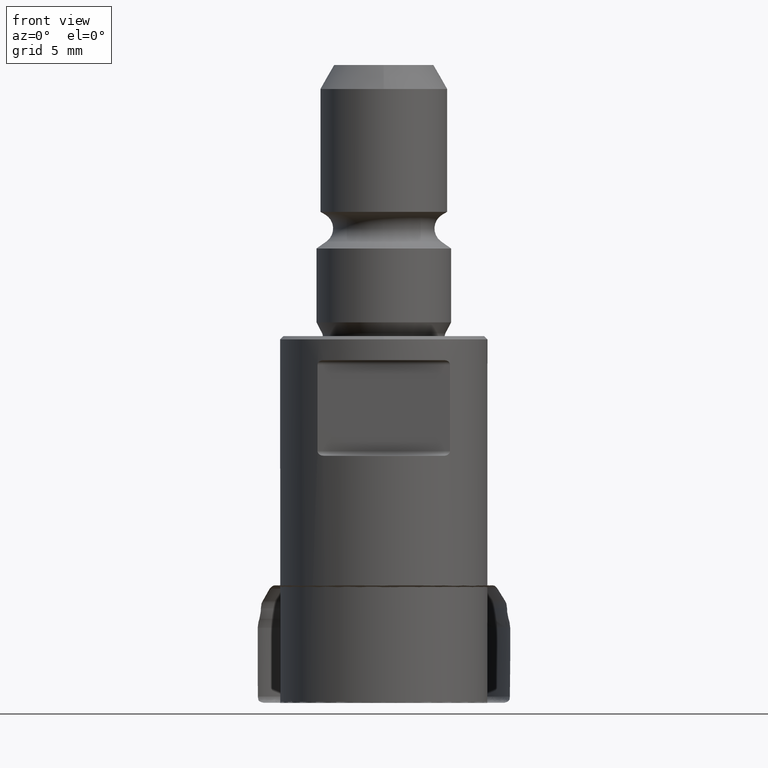
[diagram: clean part render]
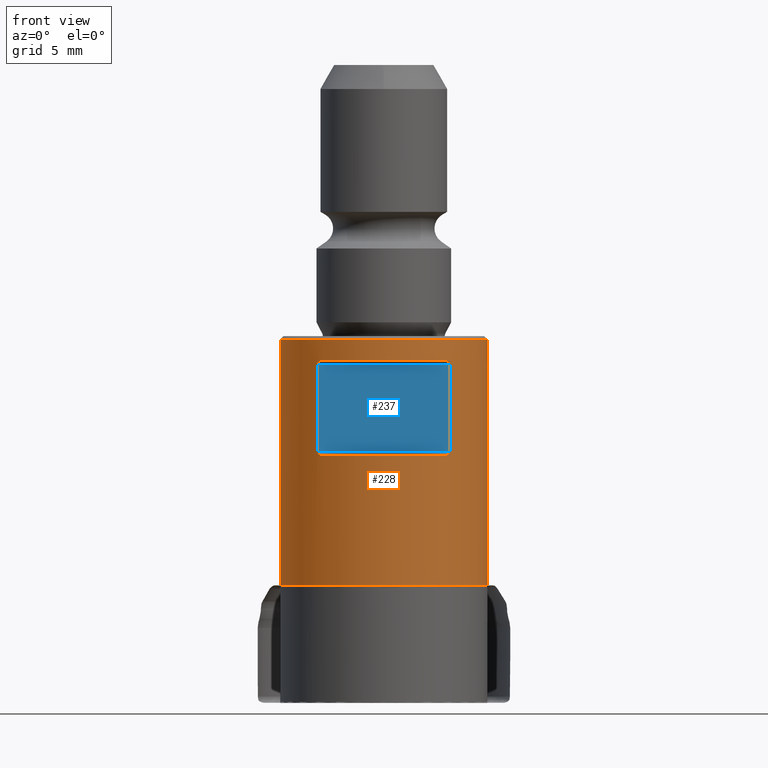
[diagram: same view with the hole feature highlighted: cylindrical wall and planar end face, labeled with their STEP entity ids]
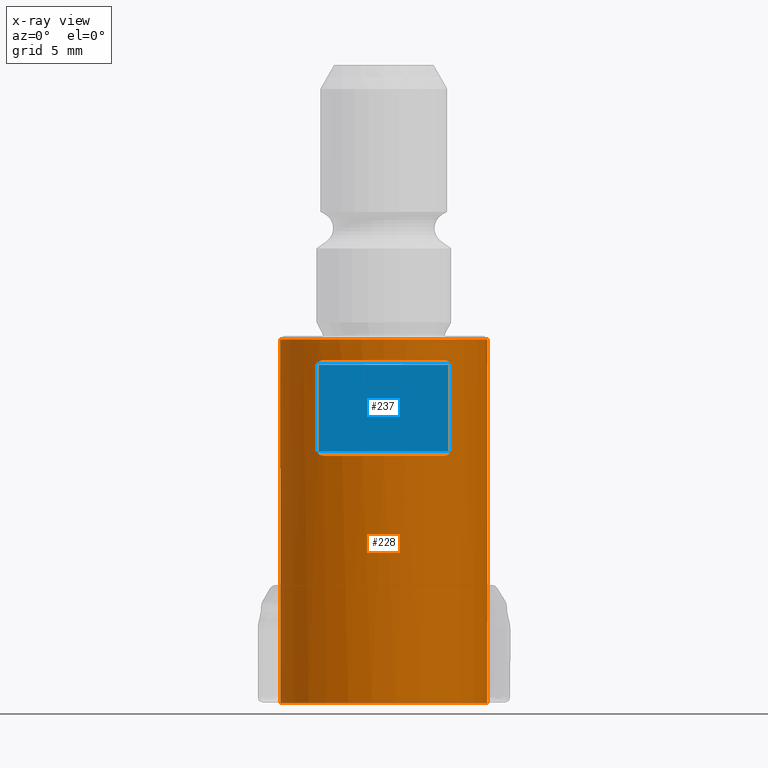
[diagram: x-ray of the same camera — body ghosted, the hole faces saturated]
A machine part, front view. The highlighted faces form one hole feature of diameter 13 mm: the cylindrical wall (entity #228, orange) and its adjacent planar end face (entity #237, blue) — they share a circular edge in the B-rep.
The next image is the same camera in x-ray (body ghosted, the hole faces saturated) — the bore reads through the body.
Wall:
#164=LINE('',#1260,#182);
#165=LINE('',#1305,#183);
#166=LINE('',#1348,#184);
#167=LINE('',#1393,#185);
#182=VECTOR('',#874,1.);
#183=VECTOR('',#877,1.);
#184=VECTOR('',#880,1.);
#185=VECTOR('',#883,1.);
#212=CYLINDRICAL_SURFACE('',#788,6.50000000000001);
#228=ADVANCED_FACE('',(#295,#296,#297,#298),#212,.T.);
#295=FACE_BOUND('',#371,.T.);
#296=FACE_BOUND('',#372,.T.);
#297=FACE_BOUND('',#373,.T.);
#298=FACE_BOUND('',#374,.T.);
#371=EDGE_LOOP('',(#457,#458,#459,#460,#461,#462,#463,#464));
#372=EDGE_LOOP('',(#465,#466,#467,#468,#469,#470,#471,#472));
#373=EDGE_LOOP('',(#473));
#374=EDGE_LOOP('',(#474));
#457=ORIENTED_EDGE('',*,*,#625,.T.);
#458=ORIENTED_EDGE('',*,*,#626,.T.);
#459=ORIENTED_EDGE('',*,*,#627,.T.);
#460=ORIENTED_EDGE('',*,*,#628,.T.);
#461=ORIENTED_EDGE('',*,*,#629,.T.);
#462=ORIENTED_EDGE('',*,*,#630,.T.);
#463=ORIENTED_EDGE('',*,*,#631,.T.);
#464=ORIENTED_EDGE('',*,*,#632,.T.);
#465=ORIENTED_EDGE('',*,*,#633,.T.);
#466=ORIENTED_EDGE('',*,*,#634,.T.);
#467=ORIENTED_EDGE('',*,*,#635,.T.);
#468=ORIENTED_EDGE('',*,*,#636,.T.);
#469=ORIENTED_EDGE('',*,*,#637,.T.);
#470=ORIENTED_EDGE('',*,*,#638,.T.);
#471=ORIENTED_EDGE('',*,*,#639,.T.);
#472=ORIENTED_EDGE('',*,*,#640,.T.);
#473=ORIENTED_EDGE('',*,*,#641,.T.);
#474=ORIENTED_EDGE('',*,*,#642,.T.);
#571=VERTEX_POINT('',#1261);
#572=VERTEX_POINT('',#1262);
#573=VERTEX_POINT('',#1282);
#574=VERTEX_POINT('',#1284);
#575=VERTEX_POINT('',#1304);
#576=VERTEX_POINT('',#1306);
#577=VERTEX_POINT('',#1326);
#578=VERTEX_POINT('',#1328);
#579=VERTEX_POINT('',#1349);
#580=VERTEX_POINT('',#1350);
#581=VERTEX_POINT('',#1370);
#582=VERTEX_POINT('',#1372);
#583=VERTEX_POINT('',#1392);
#584=VERTEX_POINT('',#1394);
#585=VERTEX_POINT('',#1411);
#586=VERTEX_POINT('',#1413);
#587=VERTEX_POINT('',#1431);
#588=VERTEX_POINT('',#1433);
#625=EDGE_CURVE('',#571,#572,#164,.T.);
#626=EDGE_CURVE('',#572,#573,#736,.T.);
#627=EDGE_CURVE('',#573,#574,#686,.T.);
#628=EDGE_CURVE('',#574,#575,#737,.T.);
#629=EDGE_CURVE('',#575,#576,#165,.T.);
#630=EDGE_CURVE('',#576,#577,#738,.T.);
#631=EDGE_CURVE('',#577,#578,#687,.T.);
#632=EDGE_CURVE('',#578,#571,#739,.T.);
#633=EDGE_CURVE('',#579,#580,#166,.T.);
#634=EDGE_CURVE('',#580,#581,#740,.T.);
#635=EDGE_CURVE('',#581,#582,#688,.T.);
#636=EDGE_CURVE('',#582,#583,#741,.T.);
#637=EDGE_CURVE('',#583,#584,#167,.T.);
#638=EDGE_CURVE('',#584,#585,#742,.T.);
#639=EDGE_CURVE('',#585,#586,#689,.T.);
#640=EDGE_CURVE('',#586,#579,#743,.T.);
#641=EDGE_CURVE('',#587,#587,#690,.T.);
#642=EDGE_CURVE('',#588,#588,#691,.T.);
#686=CIRCLE('',#782,6.50000000000001);
#687=CIRCLE('',#783,6.50000000000001);
#688=CIRCLE('',#784,6.50000000000001);
#689=CIRCLE('',#785,6.50000000000001);
#690=CIRCLE('',#786,6.50000000000001);
#691=CIRCLE('',#787,6.50000000000001);
#736=B_SPLINE_CURVE_WITH_KNOTS('',3,(#1263,#1264,#1265,#1266,#1267,#1268,
#1269,#1270,#1271,#1272,#1273,#1274,#1275,#1276,#1277,#1278,#1279,#1280,
#1281),.UNSPECIFIED.,.F.,.F.,(4,3,3,3,3,3,4),(0.,0.0253011738920627,0.128736061989017,
0.259715914585544,0.445657006271651,0.737129554108066,1.),.UNSPECIFIED.);
#737=B_SPLINE_CURVE_WITH_KNOTS('',3,(#1285,#1286,#1287,#1288,#1289,#1290,
#1291,#1292,#1293,#1294,#1295,#1296,#1297,#1298,#1299,#1300,#1301,#1302,
#1303),.UNSPECIFIED.,.F.,.F.,(4,3,3,3,3,3,4),(0.,0.0619034414888289,0.417631122666233,
0.630619276895235,0.787796200165634,0.905948468410497,1.),.UNSPECIFIED.);
#738=B_SPLINE_CURVE_WITH_KNOTS('',3,(#1307,#1308,#1309,#1310,#1311,#1312,
#1313,#1314,#1315,#1316,#1317,#1318,#1319,#1320,#1321,#1322,#1323,#1324,
#1325),.UNSPECIFIED.,.F.,.F.,(4,3,3,3,3,3,4),(0.,0.0253011738920736,0.128736061989028,
0.259715914585564,0.445657006271673,0.73712955410811,1.),.UNSPECIFIED.);
#739=B_SPLINE_CURVE_WITH_KNOTS('',3,(#1329,#1330,#1331,#1332,#1333,#1334,
#1335,#1336,#1337,#1338,#1339,#1340,#1341,#1342,#1343,#1344,#1345,#1346,
#1347),.UNSPECIFIED.,.F.,.F.,(4,3,3,3,3,3,4),(0.,0.0619034414888381,0.417631122666238,
0.630619276895243,0.787796200165641,0.905948468410508,1.),.UNSPECIFIED.);
#740=B_SPLINE_CURVE_WITH_KNOTS('',3,(#1351,#1352,#1353,#1354,#1355,#1356,
#1357,#1358,#1359,#1360,#1361,#1362,#1363,#1364,#1365,#1366,#1367,#1368,
#1369),.UNSPECIFIED.,.F.,.F.,(4,3,3,3,3,3,4),(0.,0.0253011738920624,0.128736061989016,
0.259715914585543,0.44565700627165,0.737129554108065,1.),.UNSPECIFIED.);
#741=B_SPLINE_CURVE_WITH_KNOTS('',3,(#1373,#1374,#1375,#1376,#1377,#1378,
#1379,#1380,#1381,#1382,#1383,#1384,#1385,#1386,#1387,#1388,#1389,#1390,
#1391),.UNSPECIFIED.,.F.,.F.,(4,3,3,3,3,3,4),(0.,0.0619034414888287,0.417631122666232,
0.630619276895234,0.787796200165632,0.905948468410496,1.),.UNSPECIFIED.);
#742=B_SPLINE_CURVE_WITH_KNOTS('',3,(#1395,#1396,#1397,#1398,#1399,#1400,
#1401,#1402,#1403,#1404,#1405,#1406,#1407,#1408,#1409,#1410),
 .UNSPECIFIED.,.F.,.F.,(4,3,3,3,3,4),(0.,0.11871641708076,0.236224692479285,
0.410764939640181,0.681292844719464,1.),.UNSPECIFIED.);
#743=B_SPLINE_CURVE_WITH_KNOTS('',3,(#1414,#1415,#1416,#1417,#1418,#1419,
#1420,#1421,#1422,#1423,#1424,#1425,#1426,#1427,#1428,#1429),
 .UNSPECIFIED.,.F.,.F.,(4,3,3,3,3,4),(0.,0.441910657667721,0.632581644963178,
0.794039734534741,0.910417861167614,1.),.UNSPECIFIED.);
#782=AXIS2_PLACEMENT_3D('',#1283,#875,#876);
#783=AXIS2_PLACEMENT_3D('',#1327,#878,#879);
#784=AXIS2_PLACEMENT_3D('',#1371,#881,#882);
#785=AXIS2_PLACEMENT_3D('',#1412,#884,#885);
#786=AXIS2_PLACEMENT_3D('',#1430,#886,#887);
#787=AXIS2_PLACEMENT_3D('',#1432,#888,#889);
#788=AXIS2_PLACEMENT_3D('',#1434,#890,#891);
#874=DIRECTION('',(1.17145536458252E-15,1.17145536458252E-15,1.));
#875=DIRECTION('',(1.17145536458252E-15,1.17145536458252E-15,1.));
#876=DIRECTION('',(0.,1.,-1.06752213906265E-15));
#877=DIRECTION('',(-1.17145536458252E-15,-1.17145536458252E-15,-1.));
#878=DIRECTION('',(-1.17145536458252E-15,-1.17145536458252E-15,-1.));
#879=DIRECTION('',(0.,-1.,1.06752213906265E-15));
#880=DIRECTION('',(1.17145536458252E-15,1.17145536458252E-15,1.));
#881=DIRECTION('',(1.17145536458252E-15,1.17145536458252E-15,1.));
#882=DIRECTION('',(0.,1.,-1.06752213906265E-15));
#883=DIRECTION('',(-1.17145536458252E-15,-1.17145536458252E-15,-1.));
#884=DIRECTION('',(-1.17145536458252E-15,-1.17145536458252E-15,-1.));
#885=DIRECTION('',(0.,-1.,1.06752213906265E-15));
#886=DIRECTION('',(-1.17145536458252E-15,-1.17145536458252E-15,-1.));
#887=DIRECTION('',(0.,-1.,1.06752213906265E-15));
#888=DIRECTION('',(1.17145536458252E-15,1.17145536458252E-15,1.));
#889=DIRECTION('',(0.,1.,-1.17151172243325E-15));
#890=DIRECTION('',(1.17145536458252E-15,1.17145536458252E-15,1.));
#891=DIRECTION('',(0.,1.,-1.17151172243325E-15));
#1260=CARTESIAN_POINT('',(4.15331193145905,4.99999999999999,-0.0130000000000113));
#1261=CARTESIAN_POINT('',(4.15331193145907,5.00000000000002,15.787));
#1262=CARTESIAN_POINT('',(4.15331193145907,5.00000000000002,21.187));
#1263=CARTESIAN_POINT('',(4.15331193145907,5.00000000000002,21.187));
#1264=CARTESIAN_POINT('',(4.15331193145907,5.00000000000002,21.1923916224035));
#1265=CARTESIAN_POINT('',(4.15313647922876,5.00014575694473,21.1977879897077));
#1266=CARTESIAN_POINT('',(4.15278749220165,5.00043558548794,21.2031604937434));
#1267=CARTESIAN_POINT('',(4.15136987727308,5.00161289363309,21.2249840611914));
#1268=CARTESIAN_POINT('',(4.14697266977673,5.00526657667684,21.246722779189));
#1269=CARTESIAN_POINT('',(4.14025980117646,5.01081318537847,21.2668184580723));
#1270=CARTESIAN_POINT('',(4.13177882755827,5.01782071745904,21.2922071454722));
#1271=CARTESIAN_POINT('',(4.1194345032128,5.027982219286,21.31570140177));
#1272=CARTESIAN_POINT('',(4.1050159725977,5.03972656646353,21.3361902804982));
#1273=CARTESIAN_POINT('',(4.08459814096393,5.05635753321879,21.3652042270232));
#1274=CARTESIAN_POINT('',(4.05951047387773,5.07656744469597,21.3892332253044));
#1275=CARTESIAN_POINT('',(4.0327728260745,5.09771942473059,21.4085458617728));
#1276=CARTESIAN_POINT('',(3.99100428085047,5.13076225038062,21.4387153342582));
#1277=CARTESIAN_POINT('',(3.94390847070128,5.16712512151093,21.4586371061377));
#1278=CARTESIAN_POINT('',(3.89590653321161,5.20306758407765,21.4709086239329));
#1279=CARTESIAN_POINT('',(3.85269533203192,5.2354228818445,21.4819554077078));
#1280=CARTESIAN_POINT('',(3.80790593694802,5.26810103168013,21.487));
#1281=CARTESIAN_POINT('',(3.76297754444539,5.30000000000003,21.487));
#1282=CARTESIAN_POINT('',(3.76297754444539,5.30000000000003,21.487));
#1283=CARTESIAN_POINT('',(2.51710614187847E-14,2.51710614187847E-14,21.487));
#1284=CARTESIAN_POINT('',(-3.76297754444534,5.30000000000003,21.487));
#1285=CARTESIAN_POINT('',(-3.76297754444534,5.30000000000003,21.487));
#1286=CARTESIAN_POINT('',(-3.77363424905104,5.29243378488134,21.487));
#1287=CARTESIAN_POINT('',(-3.78427087039633,5.284833436843,21.4867138965959));
#1288=CARTESIAN_POINT('',(-3.79487127197155,5.27721062960018,21.4861331552951));
#1289=CARTESIAN_POINT('',(-3.85536718867966,5.23370768220985,21.4828188961967));
#1290=CARTESIAN_POINT('',(-3.91569799851259,5.18866222166566,21.4700053801014));
#1291=CARTESIAN_POINT('',(-3.97115158841107,5.1458677656796,21.4443776492693));
#1292=CARTESIAN_POINT('',(-4.00451787203287,5.12011845064904,21.4289575089846));
#1293=CARTESIAN_POINT('',(-4.03669140532482,5.09474588149577,21.4085520647237));
#1294=CARTESIAN_POINT('',(-4.06496765485288,5.07208418354822,21.3820753203537));
#1295=CARTESIAN_POINT('',(-4.085847117143,5.05535056167038,21.3625246304686));
#1296=CARTESIAN_POINT('',(-4.10498497198399,5.0397894030835,21.3391906772248));
#1297=CARTESIAN_POINT('',(-4.120039490902,5.02745209757469,21.3123700158872));
#1298=CARTESIAN_POINT('',(-4.13137551524052,5.01816212980611,21.2921741085084));
#1299=CARTESIAN_POINT('',(-4.14058350399018,5.01055124120723,21.2695177955934));
#1300=CARTESIAN_POINT('',(-4.14632049514476,5.00579927199869,21.2457020582559));
#1301=CARTESIAN_POINT('',(-4.15087268933241,5.00202867413159,21.2268047202331));
#1302=CARTESIAN_POINT('',(-4.15331193145902,5.00000000000002,21.2068002339519));
#1303=CARTESIAN_POINT('',(-4.15331193145902,5.00000000000002,21.187));
#1304=CARTESIAN_POINT('',(-4.15331193145902,5.00000000000002,21.187));
#1305=CARTESIAN_POINT('',(-4.15331193145905,4.99999999999999,-0.0130000000000016));
#1306=CARTESIAN_POINT('',(-4.15331193145903,5.00000000000002,15.787));
#1307=CARTESIAN_POINT('',(-4.15331193145903,5.00000000000002,15.787));
#1308=CARTESIAN_POINT('',(-4.15331193145903,5.00000000000002,15.7816083775964));
#1309=CARTESIAN_POINT('',(-4.15313647922872,5.00014575694472,15.7762120102922));
#1310=CARTESIAN_POINT('',(-4.1527874922016,5.00043558548793,15.7708395062566));
#1311=CARTESIAN_POINT('',(-4.15136987727304,5.00161289363308,15.7490159388086));
#1312=CARTESIAN_POINT('',(-4.14697266977669,5.00526657667683,15.7272772208109));
#1313=CARTESIAN_POINT('',(-4.14025980117642,5.01081318537847,15.7071815419277));
#1314=CARTESIAN_POINT('',(-4.13177882755822,5.01782071745903,15.6817928545278));
#1315=CARTESIAN_POINT('',(-4.11943450321276,5.02798221928599,15.6582985982299));
#1316=CARTESIAN_POINT('',(-4.10501597259765,5.03972656646353,15.6378097195018));
#1317=CARTESIAN_POINT('',(-4.08459814096388,5.05635753321878,15.6087957729768));
#1318=CARTESIAN_POINT('',(-4.05951047387768,5.07656744469597,15.5847667746955));
#1319=CARTESIAN_POINT('',(-4.03277282607445,5.09771942473059,15.5654541382272));
#1320=CARTESIAN_POINT('',(-3.99100428085042,5.13076225038062,15.5352846657417));
#1321=CARTESIAN_POINT('',(-3.94390847070122,5.16712512151093,15.5153628938623));
#1322=CARTESIAN_POINT('',(-3.89590653321155,5.20306758407765,15.5030913760671));
#1323=CARTESIAN_POINT('',(-3.85269533203187,5.2354228818445,15.4920445922922));
#1324=CARTESIAN_POINT('',(-3.80790593694797,5.26810103168013,15.487));
#1325=CARTESIAN_POINT('',(-3.76297754444535,5.30000000000002,15.487));
#1326=CARTESIAN_POINT('',(-3.76297754444535,5.30000000000002,15.487));
#1327=CARTESIAN_POINT('',(1.81423292312895E-14,1.81423292312895E-14,15.487));
#1328=CARTESIAN_POINT('',(3.76297754444539,5.30000000000002,15.487));
#1329=CARTESIAN_POINT('',(3.76297754444539,5.30000000000002,15.487));
#1330=CARTESIAN_POINT('',(3.77363424905109,5.29243378488133,15.487));
#1331=CARTESIAN_POINT('',(3.78427087039638,5.28483343684298,15.487286103404));
#1332=CARTESIAN_POINT('',(3.7948712719716,5.27721062960017,15.4878668447049));
#1333=CARTESIAN_POINT('',(3.85536718867971,5.23370768220984,15.4911811038033));
#1334=CARTESIAN_POINT('',(3.91569799851264,5.18866222166565,15.5039946198986));
#1335=CARTESIAN_POINT('',(3.97115158841112,5.14586776567959,15.5296223507307));
#1336=CARTESIAN_POINT('',(4.00451787203292,5.12011845064903,15.5450424910154));
#1337=CARTESIAN_POINT('',(4.03669140532486,5.09474588149576,15.5654479352763));
#1338=CARTESIAN_POINT('',(4.06496765485292,5.07208418354821,15.5919246796463));
#1339=CARTESIAN_POINT('',(4.08584711714304,5.05535056167037,15.6114753695314));
#1340=CARTESIAN_POINT('',(4.10498497198404,5.03978940308349,15.6348093227751));
#1341=CARTESIAN_POINT('',(4.12003949090204,5.02745209757468,15.6616299841128));
#1342=CARTESIAN_POINT('',(4.13137551524057,5.0181621298061,15.6818258914915));
#1343=CARTESIAN_POINT('',(4.14058350399023,5.01055124120722,15.7044822044066));
#1344=CARTESIAN_POINT('',(4.14632049514481,5.00579927199868,15.728297941744));
#1345=CARTESIAN_POINT('',(4.15087268933246,5.00202867413158,15.7471952797669));
#1346=CARTESIAN_POINT('',(4.15331193145907,5.00000000000002,15.7671997660481));
#1347=CARTESIAN_POINT('',(4.15331193145907,5.00000000000002,15.787));
#1348=CARTESIAN_POINT('',(-4.15331193145905,-4.99999999999999,-0.0129999999999898));
#1349=CARTESIAN_POINT('',(-4.15331193145903,-4.99999999999998,15.787));
#1350=CARTESIAN_POINT('',(-4.15331193145902,-4.99999999999998,21.187));
#1351=CARTESIAN_POINT('',(-4.15331193145902,-4.99999999999998,21.187));
#1352=CARTESIAN_POINT('',(-4.15331193145902,-4.99999999999998,21.1923916224036));
#1353=CARTESIAN_POINT('',(-4.15313647922871,-5.00014575694468,21.1977879897078));
#1354=CARTESIAN_POINT('',(-4.1527874922016,-5.00043558548789,21.2031604937434));
#1355=CARTESIAN_POINT('',(-4.15136987727303,-5.00161289363304,21.2249840611914));
#1356=CARTESIAN_POINT('',(-4.14697266977668,-5.00526657667679,21.2467227791891));
#1357=CARTESIAN_POINT('',(-4.14025980117641,-5.01081318537842,21.2668184580723));
#1358=CARTESIAN_POINT('',(-4.13177882755822,-5.01782071745899,21.2922071454722));
#1359=CARTESIAN_POINT('',(-4.11943450321275,-5.02798221928595,21.3157014017701));
#1360=CARTESIAN_POINT('',(-4.10501597259765,-5.03972656646348,21.3361902804982));
#1361=CARTESIAN_POINT('',(-4.08459814096388,-5.05635753321874,21.3652042270232));
#1362=CARTESIAN_POINT('',(-4.05951047387768,-5.07656744469592,21.3892332253045));
#1363=CARTESIAN_POINT('',(-4.03277282607445,-5.09771942473054,21.4085458617728));
#1364=CARTESIAN_POINT('',(-3.99100428085042,-5.13076225038057,21.4387153342583));
#1365=CARTESIAN_POINT('',(-3.94390847070123,-5.16712512151088,21.4586371061377));
#1366=CARTESIAN_POINT('',(-3.89590653321156,-5.2030675840776,21.4709086239329));
#1367=CARTESIAN_POINT('',(-3.85269533203187,-5.23542288184445,21.4819554077078));
#1368=CARTESIAN_POINT('',(-3.80790593694797,-5.26810103168008,21.487));
#1369=CARTESIAN_POINT('',(-3.76297754444534,-5.29999999999998,21.487));
#1370=CARTESIAN_POINT('',(-3.76297754444534,-5.29999999999998,21.487));
#1371=CARTESIAN_POINT('',(2.51710614187847E-14,2.51710614187847E-14,21.487));
#1372=CARTESIAN_POINT('',(3.76297754444539,-5.29999999999998,21.487));
#1373=CARTESIAN_POINT('',(3.76297754444539,-5.29999999999998,21.487));
#1374=CARTESIAN_POINT('',(3.77363424905109,-5.29243378488129,21.487));
#1375=CARTESIAN_POINT('',(3.78427087039638,-5.28483343684295,21.4867138965959));
#1376=CARTESIAN_POINT('',(3.7948712719716,-5.27721062960013,21.4861331552951));
#1377=CARTESIAN_POINT('',(3.85536718867971,-5.2337076822098,21.4828188961967));
#1378=CARTESIAN_POINT('',(3.91569799851264,-5.18866222166561,21.4700053801014));
#1379=CARTESIAN_POINT('',(3.97115158841112,-5.14586776567955,21.4443776492693));
#1380=CARTESIAN_POINT('',(4.00451787203292,-5.12011845064899,21.4289575089846));
#1381=CARTESIAN_POINT('',(4.03669140532487,-5.09474588149572,21.4085520647237));
#1382=CARTESIAN_POINT('',(4.06496765485293,-5.07208418354817,21.3820753203537));
#1383=CARTESIAN_POINT('',(4.08584711714305,-5.05535056167033,21.3625246304686));
#1384=CARTESIAN_POINT('',(4.10498497198404,-5.03978940308345,21.3391906772248));
#1385=CARTESIAN_POINT('',(4.12003949090205,-5.02745209757464,21.3123700158872));
#1386=CARTESIAN_POINT('',(4.13137551524057,-5.01816212980606,21.2921741085085));
#1387=CARTESIAN_POINT('',(4.14058350399023,-5.01055124120718,21.2695177955934));
#1388=CARTESIAN_POINT('',(4.14632049514481,-5.00579927199864,21.245702058256));
#1389=CARTESIAN_POINT('',(4.15087268933246,-5.00202867413154,21.2268047202331));
#1390=CARTESIAN_POINT('',(4.15331193145907,-4.99999999999998,21.2068002339519));
#1391=CARTESIAN_POINT('',(4.15331193145907,-4.99999999999998,21.187));
#1392=CARTESIAN_POINT('',(4.15331193145907,-4.99999999999998,21.187));
#1393=CARTESIAN_POINT('',(4.15331193145905,-4.99999999999999,-0.0129999999999996));
#1394=CARTESIAN_POINT('',(4.15331193145907,-4.99999999999998,15.787));
#1395=CARTESIAN_POINT('',(4.15331193145907,-4.99999999999998,15.787));
#1396=CARTESIAN_POINT('',(4.15331193145907,-4.99999999999998,15.7620107308823));
#1397=CARTESIAN_POINT('',(4.14936163490695,-5.00328722360926,15.7366462500176));
#1398=CARTESIAN_POINT('',(4.14225587947569,-5.00916322642307,15.7134203075885));
#1399=CARTESIAN_POINT('',(4.13519148061602,-5.01500503001155,15.6903295436581));
#1400=CARTESIAN_POINT('',(4.12491795311262,-5.02347474021856,15.6686651724228));
#1401=CARTESIAN_POINT('',(4.11275797513628,-5.03341055726164,15.6494134126433));
#1402=CARTESIAN_POINT('',(4.09476832950474,-5.04810974734346,15.6209320834098));
#1403=CARTESIAN_POINT('',(4.07223282867433,-5.06634796327709,15.5968191215811));
#1404=CARTESIAN_POINT('',(4.04796682626434,-5.08566264841303,15.5770964514004));
#1405=CARTESIAN_POINT('',(4.01047914505775,-5.11550121624749,15.5466276020291));
#1406=CARTESIAN_POINT('',(3.9677271729042,-5.14880213888758,15.5253852567153));
#1407=CARTESIAN_POINT('',(3.9238985287797,-5.18198999765925,15.5111854983009));
#1408=CARTESIAN_POINT('',(3.8721776765843,-5.22115398213789,15.4944287945325));
#1409=CARTESIAN_POINT('',(3.8176122769925,-5.26120957137333,15.4869999999917));
#1410=CARTESIAN_POINT('',(3.76297754444721,-5.29999999999878,15.4869999999916));
#1411=CARTESIAN_POINT('',(3.76297754444539,-5.29999999999998,15.487));
#1412=CARTESIAN_POINT('',(1.81423292312895E-14,1.81423292312895E-14,15.487));
#1413=CARTESIAN_POINT('',(-3.76297754444535,-5.29999999999998,15.487));
#1414=CARTESIAN_POINT('',(-3.76297754444535,-5.29999999999998,15.487));
#1415=CARTESIAN_POINT('',(-3.83814141380666,-5.24663397121503,15.487));
#1416=CARTESIAN_POINT('',(-3.91394829636311,-5.19021809430738,15.500905019499));
#1417=CARTESIAN_POINT('',(-3.98173572588041,-5.13768241615296,15.5347045343762));
#1418=CARTESIAN_POINT('',(-4.01138096562978,-5.11470717154826,15.5494859581458));
#1419=CARTESIAN_POINT('',(-4.03991443673522,-5.09216543852575,15.5683995993926));
#1420=CARTESIAN_POINT('',(-4.06528868557519,-5.07182688022118,15.5922257013608));
#1421=CARTESIAN_POINT('',(-4.08673107779416,-5.05463987511669,15.6123598391897));
#1422=CARTESIAN_POINT('',(-4.1063401255963,-5.03868606151706,15.6365190944444));
#1423=CARTESIAN_POINT('',(-4.12154129174729,-5.02622098404177,15.6643417331732));
#1424=CARTESIAN_POINT('',(-4.13252953907122,-5.0172105336033,15.6844534820035));
#1425=CARTESIAN_POINT('',(-4.14139445822867,-5.00988045016738,15.7069543824829));
#1426=CARTESIAN_POINT('',(-4.14684956213189,-5.00536099687588,15.7305388820688));
#1427=CARTESIAN_POINT('',(-4.15106455990568,-5.00186894871321,15.7487619287815));
#1428=CARTESIAN_POINT('',(-4.15331193145903,-4.99999999999998,15.7679726502609));
#1429=CARTESIAN_POINT('',(-4.15331193145903,-4.99999999999998,15.787));
#1430=CARTESIAN_POINT('',(2.6693953392742E-14,2.6693953392742E-14,22.787));
#1431=CARTESIAN_POINT('',(2.6693953392742E-14,-6.49999999999998,22.787));
#1432=CARTESIAN_POINT('',(-1.52289197396002E-17,-1.52289197396002E-17,-0.0130000000000234));
#1433=CARTESIAN_POINT('',(-1.52289197396002E-17,6.50000000000001,-0.013000000000031));
#1434=CARTESIAN_POINT('',(-1.52289197395718E-17,-1.52289197395718E-17,-0.0129999999999991));
End face:
#156=FACE_OUTER_BOUND('',#387,.T.);
#166=LINE('',#1348,#184);
#167=LINE('',#1393,#185);
#170=LINE('',#1450,#188);
#171=LINE('',#1451,#189);
#184=VECTOR('',#880,1.);
#185=VECTOR('',#883,1.);
#188=VECTOR('',#914,1.);
#189=VECTOR('',#915,1.);
#237=ADVANCED_FACE('',(#156),#271,.F.);
#271=PLANE('',#799);
#387=EDGE_LOOP('',(#489,#490,#491,#492));
#489=ORIENTED_EDGE('',*,*,#647,.T.);
#490=ORIENTED_EDGE('',*,*,#637,.F.);
#491=ORIENTED_EDGE('',*,*,#648,.T.);
#492=ORIENTED_EDGE('',*,*,#633,.F.);
#579=VERTEX_POINT('',#1349);
#580=VERTEX_POINT('',#1350);
#583=VERTEX_POINT('',#1392);
#584=VERTEX_POINT('',#1394);
#633=EDGE_CURVE('',#579,#580,#166,.T.);
#637=EDGE_CURVE('',#583,#584,#167,.T.);
#647=EDGE_CURVE('',#579,#584,#170,.T.);
#648=EDGE_CURVE('',#583,#580,#171,.T.);
#799=AXIS2_PLACEMENT_3D('',#1452,#916,#917);
#880=DIRECTION('',(1.17145536458252E-15,1.17145536458252E-15,1.));
#883=DIRECTION('',(-1.17145536458252E-15,-1.17145536458252E-15,-1.));
#914=DIRECTION('',(1.,-1.37230767120917E-30,-1.17145536458252E-15));
#915=DIRECTION('',(-1.,1.37230767120917E-30,1.17145536458252E-15));
#916=DIRECTION('',(3.38691853666712E-31,1.,-8.82334785253057E-16));
#917=DIRECTION('',(-1.17180570802233E-15,-8.82106887534206E-16,-1.));
#1348=CARTESIAN_POINT('',(-4.15331193145905,-4.99999999999999,-0.0129999999999898));
#1349=CARTESIAN_POINT('',(-4.15331193145903,-4.99999999999998,15.787));
#1350=CARTESIAN_POINT('',(-4.15331193145902,-4.99999999999998,21.187));
#1392=CARTESIAN_POINT('',(4.15331193145907,-4.99999999999998,21.187));
#1393=CARTESIAN_POINT('',(4.15331193145905,-4.99999999999999,-0.0129999999999996));
#1394=CARTESIAN_POINT('',(4.15331193145907,-4.99999999999998,15.787));
#1450=CARTESIAN_POINT('',(5.00000000000002,-4.99999999999998,15.787));
#1451=CARTESIAN_POINT('',(5.00000000000002,-4.99999999999998,21.187));
#1452=CARTESIAN_POINT('',(5.00000000000002,-4.99999999999998,21.487));